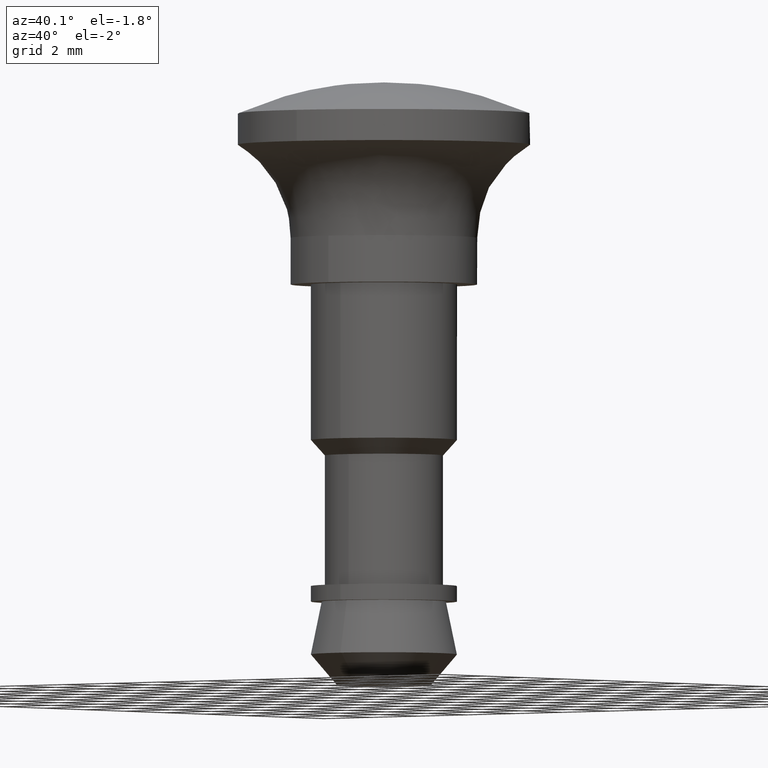
[diagram: clean part render]
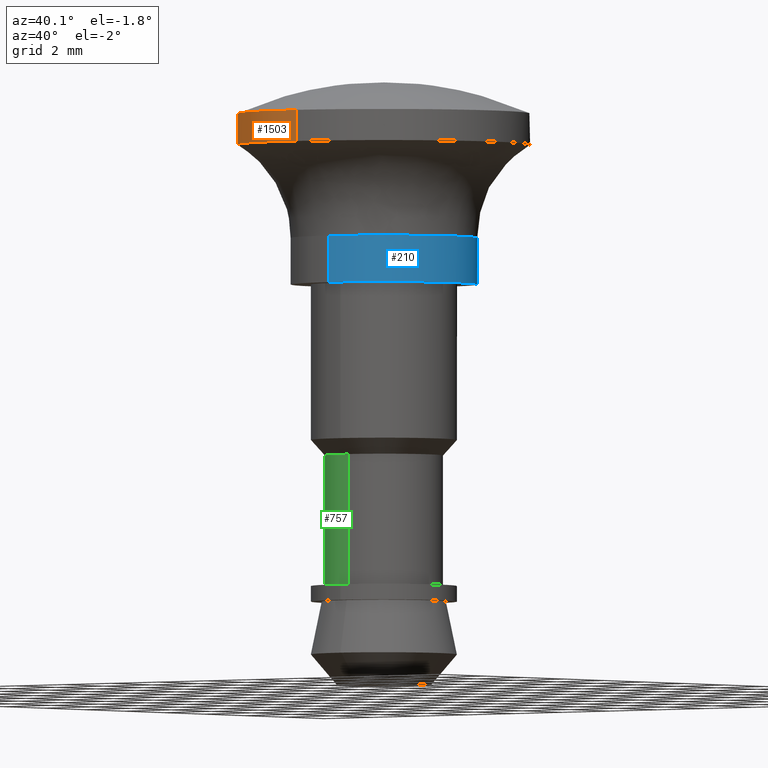
[diagram: same view with three faces highlighted in distinct colors, each labeled with its STEP entity id]
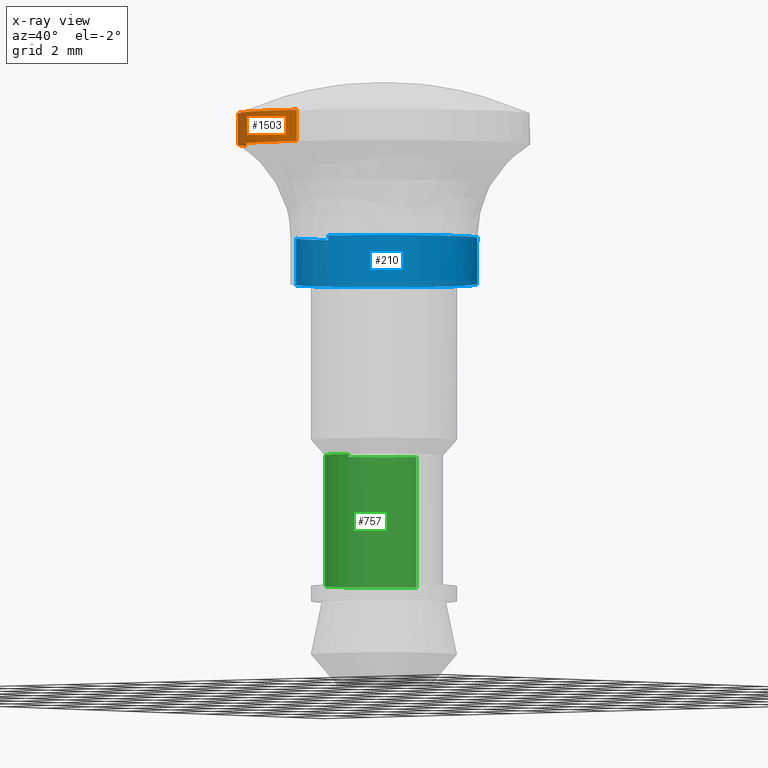
[diagram: x-ray of the same camera — body ghosted, the three highlighted faces saturated]
A machine part, auxiliary view with three faces highlighted in distinct colors.
The next image is the same camera in x-ray (body ghosted, the three faces saturated) — at least one of them is partly hidden behind the body in this view.
Their STEP definitions:

[orange] entity #1503 — the highlighted face is a freeform B-spline surface patch.
#1310=CARTESIAN_POINT('',(-4.399878107368780,-1.652601384581499,4.499666203920985));
#1311=VERTEX_POINT('',#1310);
#1327=CARTESIAN_POINT('',(-4.399881813166960,-1.652602831381717,5.499996454043682));
#1328=VERTEX_POINT('',#1327);
#1329=CARTESIAN_POINT('',(-4.399881813166960,-1.652602831381717,5.499996454043682));
#1330=CARTESIAN_POINT('',(-4.399878107368780,-1.652601384581499,4.499666203920985));
#1331=QUASI_UNIFORM_CURVE('',1,(#1329,#1330),.UNSPECIFIED.,.F.,.U.);
#1332=EDGE_CURVE('',#1328,#1311,#1331,.T.);
#1366=CARTESIAN_POINT('',(0.286922604925091,-4.691239868829175,5.499996454043680));
#1367=VERTEX_POINT('',#1366);
#1381=CARTESIAN_POINT('',(0.286922287763427,-4.691235902913967,4.499666203926619));
#1382=VERTEX_POINT('',#1381);
#1383=CARTESIAN_POINT('',(0.286922604925091,-4.691239868829175,5.499996454043680));
#1384=CARTESIAN_POINT('',(0.286922287763427,-4.691235902913967,4.499666203926619));
#1385=QUASI_UNIFORM_CURVE('',1,(#1383,#1384),.UNSPECIFIED.,.F.,.U.);
#1386=EDGE_CURVE('',#1367,#1382,#1385,.T.);
#1451=CARTESIAN_POINT('',(0.313398110055444,-4.689618564916301,5.525004811307533));
#1452=CARTESIAN_POINT('',(0.300178728378240,-4.690427096936450,5.525004811307536));
#1453=CARTESIAN_POINT('',(-3.178939724991473,-4.903219097358443,5.525004811307537));
#1454=CARTESIAN_POINT('',(-4.405032939373253,-1.638882876745008,5.525004811307536));
#1455=CARTESIAN_POINT('',(-4.410179349992054,-1.625181133360375,5.525004811307536));
#1456=CARTESIAN_POINT('',(0.313398110055444,-4.689618564916301,4.474028597294019));
#1457=CARTESIAN_POINT('',(0.300178728378240,-4.690427096936450,4.474028597294021));
#1458=CARTESIAN_POINT('',(-3.178939724991473,-4.903219097358443,4.474028597294022));
#1459=CARTESIAN_POINT('',(-4.405032939373253,-1.638882876745008,4.474028597294021));
#1460=CARTESIAN_POINT('',(-4.410179349992054,-1.625181133360375,4.474028597294022));
#1468=(BOUNDED_SURFACE()B_SPLINE_SURFACE(2,1,((#1451,#1456),(#1452,#1457),(#1453,#1458),(#1454,#1459),(#1455,#1460)),.UNSPECIFIED.,.F.,.F.,.U.)B_SPLINE_SURFACE_WITH_KNOTS((3,1,1,3),(2,2),(0.0,0.030929685173058,6.218243924115412,6.249184755876662),(0.0,1.0),.UNSPECIFIED.)GEOMETRIC_REPRESENTATION_ITEM()RATIONAL_B_SPLINE_SURFACE(((1.002342624201036,1.002342624201036),(1.001171312100518,1.001171312100518),(0.765685424949238,0.765685424949238),(0.906977210513847,0.906977210513847),(0.907680251047999,0.907680251047999)))REPRESENTATION_ITEM('')SURFACE());
#1469=CARTESIAN_POINT('',(0.286922287763427,-4.691235902913967,4.499666203926619));
#1470=CARTESIAN_POINT('',(0.143595074809286,-4.700001958638461,4.499666203926502));
#1471=CARTESIAN_POINT('',(0.000000037626590,-4.700001930900740,4.499666203926380));
#1472=CARTESIAN_POINT('',(-3.255269030812446,-4.700001302092490,4.499666203923624));
#1473=CARTESIAN_POINT('',(-4.399878107368779,-1.652601384581500,4.499666203920985));
#1481=(BOUNDED_CURVE()B_SPLINE_CURVE(2,(#1469,#1470,#1471,#1472,#1473),.UNSPECIFIED.,.F.,.U.)B_SPLINE_CURVE_WITH_KNOTS((3,2,3),(0.739333181803199,0.750000000000000,0.940284307113158),.UNSPECIFIED.)CURVE()GEOMETRIC_REPRESENTATION_ITEM()RATIONAL_B_SPLINE_CURVE((0.976072512235166,0.987503045135364,1.0,0.777068067199758,0.893499721329846))REPRESENTATION_ITEM(''));
#1482=EDGE_CURVE('',#1382,#1311,#1481,.T.);
#1483=ORIENTED_EDGE('',*,*,#1482,.F.);
#1484=ORIENTED_EDGE('',*,*,#1386,.F.);
#1485=CARTESIAN_POINT('',(0.286922604925091,-4.691239868829175,5.499996454043680));
#1486=CARTESIAN_POINT('',(0.143595194321125,-4.700005997114269,5.499996454043680));
#1487=CARTESIAN_POINT('',(-0.000000037626904,-4.700006024852133,5.499996454043680));
#1488=CARTESIAN_POINT('',(-3.255272638528155,-4.700006653663442,5.499996454043680));
#1489=CARTESIAN_POINT('',(-4.399881813166959,-1.652602831381717,5.499996454043682));
#1497=(BOUNDED_CURVE()B_SPLINE_CURVE(2,(#1485,#1486,#1487,#1488,#1489),.UNSPECIFIED.,.F.,.U.)B_SPLINE_CURVE_WITH_KNOTS((3,2,3),(0.739333179069552,0.750000000000000,0.940284305386098),.UNSPECIFIED.)CURVE()GEOMETRIC_REPRESENTATION_ITEM()RATIONAL_B_SPLINE_CURVE((0.976072506376430,0.987503041932698,1.0,0.777068069223135,0.893499719216330))REPRESENTATION_ITEM(''));
#1498=EDGE_CURVE('',#1367,#1328,#1497,.T.);
#1499=ORIENTED_EDGE('',*,*,#1498,.T.);
#1500=ORIENTED_EDGE('',*,*,#1332,.T.);
#1501=EDGE_LOOP('',(#1483,#1484,#1499,#1500));
#1502=FACE_OUTER_BOUND('',#1501,.T.);
#1503=ADVANCED_FACE('',(#1502),#1468,.T.);

[blue] entity #210 — the highlighted face is a freeform B-spline surface patch.
#44=CARTESIAN_POINT('',(-2.808430736329971,-1.054853923174716,1.535450000000000));
#45=CARTESIAN_POINT('',(-2.966892058095451,-0.632968355146225,1.535450000000000));
#46=CARTESIAN_POINT('',(-2.994404395265600,-0.183145618604571,1.535450000000000));
#47=CARTESIAN_POINT('',(-3.177550013870171,2.811258776661029,1.535450000000001));
#48=CARTESIAN_POINT('',(-0.183145618604571,2.994404395265600,1.535450000000000));
#49=CARTESIAN_POINT('',(2.811258776661029,3.177550013870171,1.535450000000001));
#50=CARTESIAN_POINT('',(2.994404395265600,0.183145618604571,1.535450000000000));
#51=CARTESIAN_POINT('',(3.177550013870171,-2.811258776661029,1.535450000000001));
#52=CARTESIAN_POINT('',(0.183145618604571,-2.994404395265600,1.535450000000000));
#53=CARTESIAN_POINT('',(-2.808430736329971,-1.054853923174716,-0.038386250000000));
#54=CARTESIAN_POINT('',(-2.966892058095451,-0.632968355146225,-0.038386250000000));
#55=CARTESIAN_POINT('',(-2.994404395265600,-0.183145618604571,-0.038386250000000));
#56=CARTESIAN_POINT('',(-3.177550013870171,2.811258776661029,-0.038386250000000));
#57=CARTESIAN_POINT('',(-0.183145618604571,2.994404395265600,-0.038386250000000));
#58=CARTESIAN_POINT('',(2.811258776661029,3.177550013870171,-0.038386250000000));
#59=CARTESIAN_POINT('',(2.994404395265600,0.183145618604571,-0.038386250000000));
#60=CARTESIAN_POINT('',(3.177550013870171,-2.811258776661029,-0.038386250000000));
#61=CARTESIAN_POINT('',(0.183145618604571,-2.994404395265600,-0.038386250000000));
#69=(BOUNDED_SURFACE()B_SPLINE_SURFACE(2,1,((#44,#53),(#45,#54),(#46,#55),(#47,#56),(#48,#57),(#49,#58),(#50,#59),(#51,#60),(#52,#61)),.UNSPECIFIED.,.F.,.F.,.U.)B_SPLINE_SURFACE_WITH_KNOTS((3,2,2,2,3),(2,2),(0.0,0.994112549695428,5.964675298172567,10.935238046649710,15.905800795126851),(0.0,1.0),.UNSPECIFIED.)GEOMETRIC_REPRESENTATION_ITEM()RATIONAL_B_SPLINE_SURFACE(((0.906274169979695,0.906274169979695),(0.941421356237309,0.941421356237309),(1.0,1.0),(0.707106781186548,0.707106781186548),(1.0,1.0),(0.707106781186548,0.707106781186548),(1.0,1.0),(0.707106781186548,0.707106781186548),(1.0,1.0)))REPRESENTATION_ITEM('')SURFACE());
#70=CARTESIAN_POINT('',(-2.808430836194138,-1.054853657297454,1.498000000000001));
#71=VERTEX_POINT('',#70);
#72=CARTESIAN_POINT('',(-3.0,0.0,1.498000000000000));
#73=VERTEX_POINT('',#72);
#74=CARTESIAN_POINT('',(-2.808430836194138,-1.054853657297454,1.498000000000001));
#75=CARTESIAN_POINT('',(-3.000000000000001,-0.544821864819847,1.498000000000000));
#76=CARTESIAN_POINT('',(-3.0,0.0,1.498000000000000));
#84=(BOUNDED_CURVE()B_SPLINE_CURVE(2,(#74,#75,#76),.UNSPECIFIED.,.F.,.U.)B_SPLINE_CURVE_WITH_KNOTS((3,3),(0.940284200805494,1.0),.UNSPECIFIED.)CURVE()GEOMETRIC_REPRESENTATION_ITEM()RATIONAL_B_SPLINE_CURVE((0.893499591234335,0.930038589439614,1.0))REPRESENTATION_ITEM(''));
#85=EDGE_CURVE('',#71,#73,#84,.T.);
#86=ORIENTED_EDGE('',*,*,#85,.T.);
#87=CARTESIAN_POINT('',(-2.470599186242353,1.701804824575161,1.497997071134931));
#88=VERTEX_POINT('',#87);
#89=CARTESIAN_POINT('',(-3.0,0.0,1.498000000000000));
#90=CARTESIAN_POINT('',(-3.000000000000595,0.933245938866376,1.497998535567466));
#91=CARTESIAN_POINT('',(-2.470599186242354,1.701804824575161,1.497997071134931));
#99=(BOUNDED_CURVE()B_SPLINE_CURVE(2,(#89,#90,#91),.UNSPECIFIED.,.F.,.U.)B_SPLINE_CURVE_WITH_KNOTS((3,3),(0.0,0.097429828936804),.UNSPECIFIED.)CURVE()GEOMETRIC_REPRESENTATION_ITEM()RATIONAL_B_SPLINE_CURVE((1.0,0.885853855177021,0.860677625265231))REPRESENTATION_ITEM(''));
#100=EDGE_CURVE('',#73,#88,#99,.T.);
#101=ORIENTED_EDGE('',*,*,#100,.T.);
#102=CARTESIAN_POINT('',(1.840320043787088,2.369223952363005,1.497997005857969));
#103=VERTEX_POINT('',#102);
#104=CARTESIAN_POINT('',(-2.470599186242354,1.701804824575161,1.497997071134931));
#105=CARTESIAN_POINT('',(-1.576372868560510,3.000000000001109,1.497997054939149));
#106=CARTESIAN_POINT('',(4.636831E-013,3.000000000001525,1.497997031628090));
#107=CARTESIAN_POINT('',(1.028260355751189,3.000000000001798,1.497997016422400));
#108=CARTESIAN_POINT('',(1.840320043787088,2.369223952363005,1.497997005857970));
#116=(BOUNDED_CURVE()B_SPLINE_CURVE(2,(#104,#105,#106,#107,#108),.UNSPECIFIED.,.F.,.U.)B_SPLINE_CURVE_WITH_KNOTS((3,2,3),(0.097429828936804,0.250000000000000,0.356116021520993),.UNSPECIFIED.)CURVE()GEOMETRIC_REPRESENTATION_ITEM()RATIONAL_B_SPLINE_CURVE((0.860677625265231,0.821252926009526,1.0,0.875677347556155,0.856895697210534))REPRESENTATION_ITEM(''));
#117=EDGE_CURVE('',#88,#103,#116,.T.);
#118=ORIENTED_EDGE('',*,*,#117,.T.);
#119=CARTESIAN_POINT('',(3.0,0.0,1.498000000000000));
#120=VERTEX_POINT('',#119);
#121=CARTESIAN_POINT('',(1.840320043787088,2.369223952363005,1.497997005857970));
#122=CARTESIAN_POINT('',(3.000000000000771,1.468430143625183,1.497998502928985));
#123=CARTESIAN_POINT('',(3.0,0.0,1.498000000000000));
#131=(BOUNDED_CURVE()B_SPLINE_CURVE(2,(#121,#122,#123),.UNSPECIFIED.,.F.,.U.)B_SPLINE_CURVE_WITH_KNOTS((3,3),(0.356116021520993,0.500000000000000),.UNSPECIFIED.)CURVE()GEOMETRIC_REPRESENTATION_ITEM()RATIONAL_B_SPLINE_CURVE((0.856895697210534,0.831429433630393,1.0))REPRESENTATION_ITEM(''));
#132=EDGE_CURVE('',#103,#120,#131,.T.);
#133=ORIENTED_EDGE('',*,*,#132,.T.);
#134=CARTESIAN_POINT('',(0.183141592714504,-2.994404641494152,1.498000000000070));
#135=VERTEX_POINT('',#134);
#136=CARTESIAN_POINT('',(3.0,0.0,1.498000000000000));
#137=CARTESIAN_POINT('',(3.0,-2.822122002065718,1.498000000000001));
#138=CARTESIAN_POINT('',(0.183141592714504,-2.994404641494152,1.498000000000070));
#146=(BOUNDED_CURVE()B_SPLINE_CURVE(2,(#136,#137,#138),.UNSPECIFIED.,.F.,.U.)B_SPLINE_CURVE_WITH_KNOTS((3,3),(0.500000000000000,0.739333194226175),.UNSPECIFIED.)CURVE()GEOMETRIC_REPRESENTATION_ITEM()RATIONAL_B_SPLINE_CURVE((1.0,0.719603721496762,0.976072538860020))REPRESENTATION_ITEM(''));
#147=EDGE_CURVE('',#120,#135,#146,.T.);
#148=ORIENTED_EDGE('',*,*,#147,.T.);
#149=CARTESIAN_POINT('',(0.183141641266411,-2.994404638524721,6.938894E-018));
#150=VERTEX_POINT('',#149);
#151=CARTESIAN_POINT('',(0.183141592714504,-2.994404641494152,1.498000000000070));
#152=CARTESIAN_POINT('',(0.183141641266411,-2.994404638524721,6.938894E-018));
#153=QUASI_UNIFORM_CURVE('',1,(#151,#152),.UNSPECIFIED.,.F.,.U.);
#154=EDGE_CURVE('',#135,#150,#153,.T.);
#155=ORIENTED_EDGE('',*,*,#154,.T.);
#156=CARTESIAN_POINT('',(3.0,0.0,0.0));
#157=VERTEX_POINT('',#156);
#158=CARTESIAN_POINT('',(3.0,0.0,0.0));
#159=CARTESIAN_POINT('',(3.000000000000000,-2.822121956221736,0.0));
#160=CARTESIAN_POINT('',(0.183141641266411,-2.994404638524720,6.938894E-018));
#168=(BOUNDED_CURVE()B_SPLINE_CURVE(2,(#158,#159,#160),.UNSPECIFIED.,.F.,.U.)B_SPLINE_CURVE_WITH_KNOTS((3,3),(0.500000000000000,0.739333191428464),.UNSPECIFIED.)CURVE()GEOMETRIC_REPRESENTATION_ITEM()RATIONAL_B_SPLINE_CURVE((1.0,0.719603724774485,0.976072532863981))REPRESENTATION_ITEM(''));
#169=EDGE_CURVE('',#157,#150,#168,.T.);
#170=ORIENTED_EDGE('',*,*,#169,.F.);
#171=CARTESIAN_POINT('',(-3.0,0.0,0.0));
#172=VERTEX_POINT('',#171);
#173=CARTESIAN_POINT('',(-3.0,0.0,0.0));
#174=CARTESIAN_POINT('',(-3.0,3.0,0.0));
#175=CARTESIAN_POINT('',(0.0,3.0,0.0));
#176=CARTESIAN_POINT('',(3.0,3.0,0.0));
#177=CARTESIAN_POINT('',(3.0,0.0,0.0));
#185=(BOUNDED_CURVE()B_SPLINE_CURVE(2,(#173,#174,#175,#176,#177),.UNSPECIFIED.,.F.,.U.)B_SPLINE_CURVE_WITH_KNOTS((3,2,3),(0.0,0.250000000000000,0.500000000000000),.UNSPECIFIED.)CURVE()GEOMETRIC_REPRESENTATION_ITEM()RATIONAL_B_SPLINE_CURVE((1.0,0.707106781186548,1.0,0.707106781186548,1.0))REPRESENTATION_ITEM(''));
#186=EDGE_CURVE('',#172,#157,#185,.T.);
#187=ORIENTED_EDGE('',*,*,#186,.F.);
#188=CARTESIAN_POINT('',(-2.808430834989721,-1.054853660504082,9.570633E-017));
#189=VERTEX_POINT('',#188);
#190=CARTESIAN_POINT('',(-2.808430834989720,-1.054853660504082,9.570633E-017));
#191=CARTESIAN_POINT('',(-3.000000000000000,-0.544821868358178,0.0));
#192=CARTESIAN_POINT('',(-3.0,0.0,0.0));
#200=(BOUNDED_CURVE()B_SPLINE_CURVE(2,(#190,#191,#192),.UNSPECIFIED.,.F.,.U.)B_SPLINE_CURVE_WITH_KNOTS((3,3),(0.940284200444804,1.0),.UNSPECIFIED.)CURVE()GEOMETRIC_REPRESENTATION_ITEM()RATIONAL_B_SPLINE_CURVE((0.893499590792936,0.930038589017039,1.0))REPRESENTATION_ITEM(''));
#201=EDGE_CURVE('',#189,#172,#200,.T.);
#202=ORIENTED_EDGE('',*,*,#201,.F.);
#203=CARTESIAN_POINT('',(-2.808430836194138,-1.054853657297454,1.498000000000001));
#204=CARTESIAN_POINT('',(-2.808430834989721,-1.054853660504082,9.570633E-017));
#205=QUASI_UNIFORM_CURVE('',1,(#203,#204),.UNSPECIFIED.,.F.,.U.);
#206=EDGE_CURVE('',#71,#189,#205,.T.);
#207=ORIENTED_EDGE('',*,*,#206,.F.);
#208=EDGE_LOOP('',(#86,#101,#118,#133,#148,#155,#170,#187,#202,#207));
#209=FACE_OUTER_BOUND('',#208,.T.);
#210=ADVANCED_FACE('',(#209),#69,.T.);

[green] entity #757 — the highlighted face is a freeform B-spline surface patch.
#494=CARTESIAN_POINT('',(-0.224265045860890,1.886718100089415,-5.499999999999899));
#495=VERTEX_POINT('',#494);
#513=CARTESIAN_POINT('',(-1.900000000000000,0.0,-5.499999999999900));
#514=VERTEX_POINT('',#513);
#515=CARTESIAN_POINT('',(-1.900000000000000,0.0,-5.499999999999900));
#516=CARTESIAN_POINT('',(-1.900000000000000,1.687531599284089,-5.499999999999901));
#517=CARTESIAN_POINT('',(-0.224265045860890,1.886718100089415,-5.499999999999899));
#525=(BOUNDED_CURVE()B_SPLINE_CURVE(2,(#515,#516,#517),.UNSPECIFIED.,.F.,.U.)B_SPLINE_CURVE_WITH_KNOTS((3,3),(0.0,0.229562473513306),.UNSPECIFIED.)CURVE()GEOMETRIC_REPRESENTATION_ITEM()RATIONAL_B_SPLINE_CURVE((1.0,0.731050832855639,0.956026754183303))REPRESENTATION_ITEM(''));
#526=EDGE_CURVE('',#514,#495,#525,.T.);
#528=CARTESIAN_POINT('',(0.115992225135063,-1.896456117000395,-5.499999999999899));
#529=VERTEX_POINT('',#528);
#530=CARTESIAN_POINT('',(0.115992225135063,-1.896456117000394,-5.499999999999899));
#531=CARTESIAN_POINT('',(0.058050250286207,-1.900000000000000,-5.499999999999901));
#532=CARTESIAN_POINT('',(0.0,-1.900000000000000,-5.499999999999900));
#533=CARTESIAN_POINT('',(-1.900000000000000,-1.900000000000000,-5.499999999999900));
#534=CARTESIAN_POINT('',(-1.900000000000000,0.0,-5.499999999999900));
#542=(BOUNDED_CURVE()B_SPLINE_CURVE(2,(#530,#531,#532,#533,#534),.UNSPECIFIED.,.F.,.U.)B_SPLINE_CURVE_WITH_KNOTS((3,2,3),(0.739332962238541,0.750000000000000,1.0),.UNSPECIFIED.)CURVE()GEOMETRIC_REPRESENTATION_ITEM()RATIONAL_B_SPLINE_CURVE((0.976072041665856,0.987502787899366,1.0,0.707106781186547,1.0))REPRESENTATION_ITEM(''));
#543=EDGE_CURVE('',#529,#514,#542,.T.);
#656=CARTESIAN_POINT('',(0.115992225135063,-1.896456117000395,-9.699999999999999));
#657=VERTEX_POINT('',#656);
#658=CARTESIAN_POINT('',(0.115992225135063,-1.896456117000395,-5.499999999999899));
#659=CARTESIAN_POINT('',(0.115992225135063,-1.896456117000395,-9.699999999999999));
#660=QUASI_UNIFORM_CURVE('',1,(#658,#659),.UNSPECIFIED.,.F.,.U.);
#661=EDGE_CURVE('',#529,#657,#660,.T.);
#678=CARTESIAN_POINT('',(-0.224265045860891,1.886718100089415,-9.699999999999999));
#679=VERTEX_POINT('',#678);
#695=CARTESIAN_POINT('',(-0.224265045860890,1.886718100089415,-5.499999999999899));
#696=CARTESIAN_POINT('',(-0.224265045860891,1.886718100089415,-9.699999999999999));
#697=QUASI_UNIFORM_CURVE('',1,(#695,#696),.UNSPECIFIED.,.F.,.U.);
#698=EDGE_CURVE('',#495,#679,#697,.T.);
#703=CARTESIAN_POINT('',(0.115992225116228,-1.896456117001547,-5.394999999999896));
#704=CARTESIAN_POINT('',(-1.780463891885319,-2.012448342117775,-5.394999999999895));
#705=CARTESIAN_POINT('',(-1.896456117001547,-0.115992225116228,-5.394999999999896));
#706=CARTESIAN_POINT('',(-2.005993773791802,1.674932632595051,-5.394999999999895));
#707=CARTESIAN_POINT('',(-0.224265045847841,1.886718100090966,-5.394999999999897));
#708=CARTESIAN_POINT('',(0.115992225116228,-1.896456117001547,-9.807625000000005));
#709=CARTESIAN_POINT('',(-1.780463891885319,-2.012448342117775,-9.807625000000005));
#710=CARTESIAN_POINT('',(-1.896456117001547,-0.115992225116228,-9.807625000000005));
#711=CARTESIAN_POINT('',(-2.005993773791802,1.674932632595051,-9.807625000000005));
#712=CARTESIAN_POINT('',(-0.224265045847841,1.886718100090966,-9.807625000000007));
#720=(BOUNDED_SURFACE()B_SPLINE_SURFACE(2,1,((#703,#708),(#704,#709),(#705,#710),(#706,#711),(#707,#712)),.UNSPECIFIED.,.F.,.F.,.U.)B_SPLINE_SURFACE_WITH_KNOTS((3,2,3),(2,2),(0.0,3.148023074035522,6.170125225109622),(0.0,4.412625000000110),.UNSPECIFIED.)GEOMETRIC_REPRESENTATION_ITEM()RATIONAL_B_SPLINE_SURFACE(((1.0,1.0),(0.707106781186548,0.707106781186548),(1.0,1.0),(0.718822509939086,0.718822509939086),(0.977505800795127,0.977505800795127)))REPRESENTATION_ITEM('')SURFACE());
#721=ORIENTED_EDGE('',*,*,#526,.T.);
#722=ORIENTED_EDGE('',*,*,#698,.T.);
#723=CARTESIAN_POINT('',(-1.900000000000000,0.0,-9.700000000000001));
#724=VERTEX_POINT('',#723);
#725=CARTESIAN_POINT('',(-1.900000000000000,0.0,-9.700000000000001));
#726=CARTESIAN_POINT('',(-1.900000000000000,1.687531599284089,-9.700000000000001));
#727=CARTESIAN_POINT('',(-0.224265045860891,1.886718100089415,-9.699999999999998));
#735=(BOUNDED_CURVE()B_SPLINE_CURVE(2,(#725,#726,#727),.UNSPECIFIED.,.F.,.U.)B_SPLINE_CURVE_WITH_KNOTS((3,3),(0.0,0.229562473513306),.UNSPECIFIED.)CURVE()GEOMETRIC_REPRESENTATION_ITEM()RATIONAL_B_SPLINE_CURVE((1.0,0.731050832855639,0.956026754183303))REPRESENTATION_ITEM(''));
#736=EDGE_CURVE('',#724,#679,#735,.T.);
#737=ORIENTED_EDGE('',*,*,#736,.F.);
#738=CARTESIAN_POINT('',(0.115992225135063,-1.896456117000394,-9.699999999999999));
#739=CARTESIAN_POINT('',(0.058050250286207,-1.900000000000000,-9.700000000000001));
#740=CARTESIAN_POINT('',(0.0,-1.900000000000000,-9.700000000000001));
#741=CARTESIAN_POINT('',(-1.900000000000000,-1.900000000000000,-9.700000000000001));
#742=CARTESIAN_POINT('',(-1.900000000000000,0.0,-9.700000000000001));
#750=(BOUNDED_CURVE()B_SPLINE_CURVE(2,(#738,#739,#740,#741,#742),.UNSPECIFIED.,.F.,.U.)B_SPLINE_CURVE_WITH_KNOTS((3,2,3),(0.739332962238541,0.750000000000000,1.0),.UNSPECIFIED.)CURVE()GEOMETRIC_REPRESENTATION_ITEM()RATIONAL_B_SPLINE_CURVE((0.976072041665856,0.987502787899366,1.0,0.707106781186547,1.0))REPRESENTATION_ITEM(''));
#751=EDGE_CURVE('',#657,#724,#750,.T.);
#752=ORIENTED_EDGE('',*,*,#751,.F.);
#753=ORIENTED_EDGE('',*,*,#661,.F.);
#754=ORIENTED_EDGE('',*,*,#543,.T.);
#755=EDGE_LOOP('',(#721,#722,#737,#752,#753,#754));
#756=FACE_OUTER_BOUND('',#755,.T.);
#757=ADVANCED_FACE('',(#756),#720,.T.);